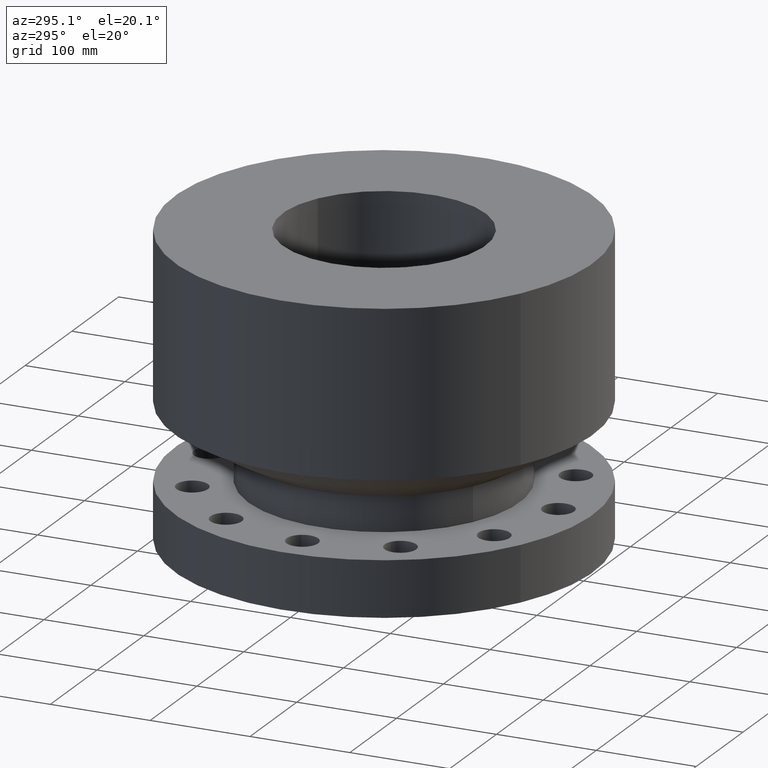
[diagram: clean part render]
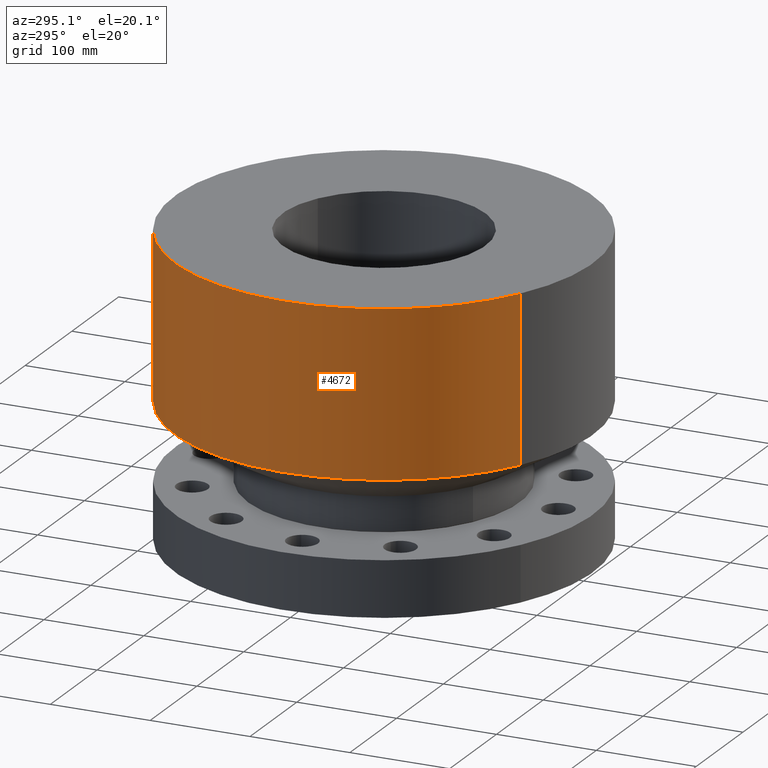
[diagram: same view with one face highlighted and labeled with its STEP entity id]
A machine part, auxiliary view. The second image highlights one B-rep face of the part: STEP entity #4672.
In plain terms, the highlighted cylindrical surface (partial cylindrical patch) has radius 209.55 mm, axis along (0, 0, -1).
Its self-contained STEP definition (entity closure, byte-faithful):
#357=AXIS2_PLACEMENT_3D('Cylinder Axis2P3D',#354,#355,#356) ;
#1782=AXIS2_PLACEMENT_3D('Circle Axis2P3D',#1780,#1781,$) ;
#4663=AXIS2_PLACEMENT_3D('Circle Axis2P3D',#4661,#4662,$) ;
#354=CARTESIAN_POINT('Axis2P3D Location',(0.,0.,5.75000000002)) ;
#1758=CARTESIAN_POINT('Vertex',(3.9552606935,7.24005613562,5.22988202394)) ;
#1765=CARTESIAN_POINT('Vertex',(-3.9552606935,-7.24005613562,5.22988202394)) ;
#1780=CARTESIAN_POINT('Axis2P3D Location',(0.,0.,5.22988202394)) ;
#4635=CARTESIAN_POINT('Line Origine',(3.9552606935,7.24005613562,8.48994101199)) ;
#4639=CARTESIAN_POINT('Vertex',(3.9552606935,7.24005613562,11.75)) ;
#4646=CARTESIAN_POINT('Vertex',(-3.9552606935,-7.24005613562,11.75)) ;
#4649=CARTESIAN_POINT('Line Origine',(-3.9552606935,-7.24005613562,8.48994101199)) ;
#4661=CARTESIAN_POINT('Axis2P3D Location',(0.,0.,11.75)) ;
#355=DIRECTION('Axis2P3D Direction',(0.,0.,-0.0393700787402)) ;
#356=DIRECTION('Axis2P3D XDirection',(-0.0188750212049,-0.0345504945626,0.)) ;
#1781=DIRECTION('Axis2P3D Direction',(-0.,0.,0.0393700787402)) ;
#4636=DIRECTION('Vector Direction',(0.,0.,-0.0393700787402)) ;
#4650=DIRECTION('Vector Direction',(0.,0.,-0.0393700787402)) ;
#4662=DIRECTION('Axis2P3D Direction',(0.,0.,-0.0393700787402)) ;
#4637=VECTOR('Line Direction',#4636,0.0393700787402) ;
#4651=VECTOR('Line Direction',#4650,0.0393700787402) ;
#4667=ORIENTED_EDGE('',*,*,#1784,.F.) ;
#4668=ORIENTED_EDGE('',*,*,#4653,.T.) ;
#4669=ORIENTED_EDGE('',*,*,#4665,.T.) ;
#4670=ORIENTED_EDGE('',*,*,#4641,.F.) ;
#4672=ADVANCED_FACE('PartBody',(#4671),#358,.T.) ;
#1783=CIRCLE('generated circle',#1782,8.25000000003) ;
#4664=CIRCLE('generated circle',#4663,8.25000000003) ;
#358=CYLINDRICAL_SURFACE('generated cylinder',#357,8.25000000003) ;
#1784=EDGE_CURVE('',#1766,#1759,#1783,.F.) ;
#4641=EDGE_CURVE('',#1759,#4640,#4638,.F.) ;
#4653=EDGE_CURVE('',#1766,#4647,#4652,.F.) ;
#4665=EDGE_CURVE('',#4647,#4640,#4664,.T.) ;
#4666=EDGE_LOOP('',(#4667,#4668,#4669,#4670)) ;
#4671=FACE_OUTER_BOUND('',#4666,.T.) ;
#4638=LINE('Line',#4635,#4637) ;
#4652=LINE('Line',#4649,#4651) ;
#1759=VERTEX_POINT('',#1758) ;
#1766=VERTEX_POINT('',#1765) ;
#4640=VERTEX_POINT('',#4639) ;
#4647=VERTEX_POINT('',#4646) ;